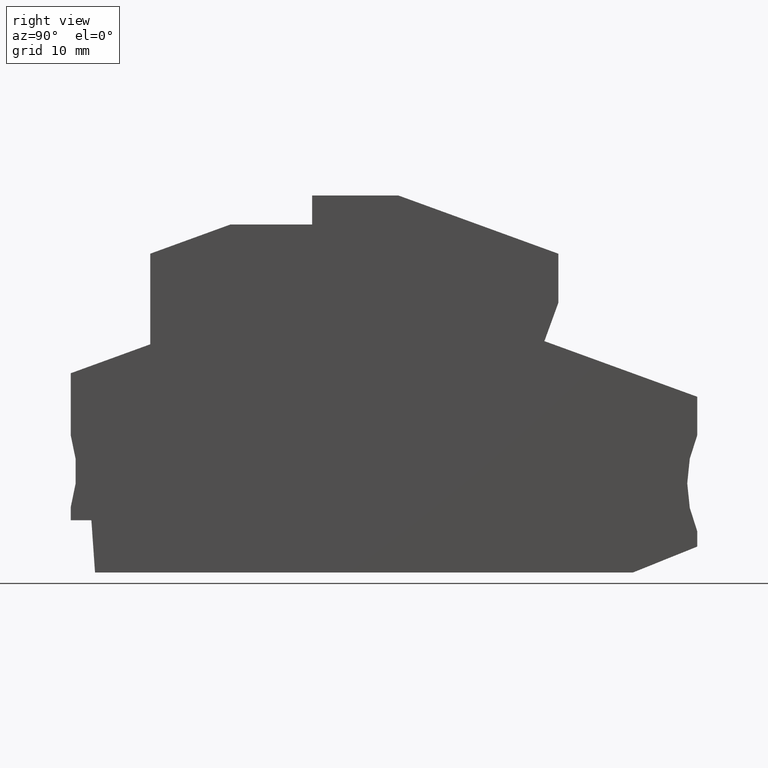
[diagram: clean part render]
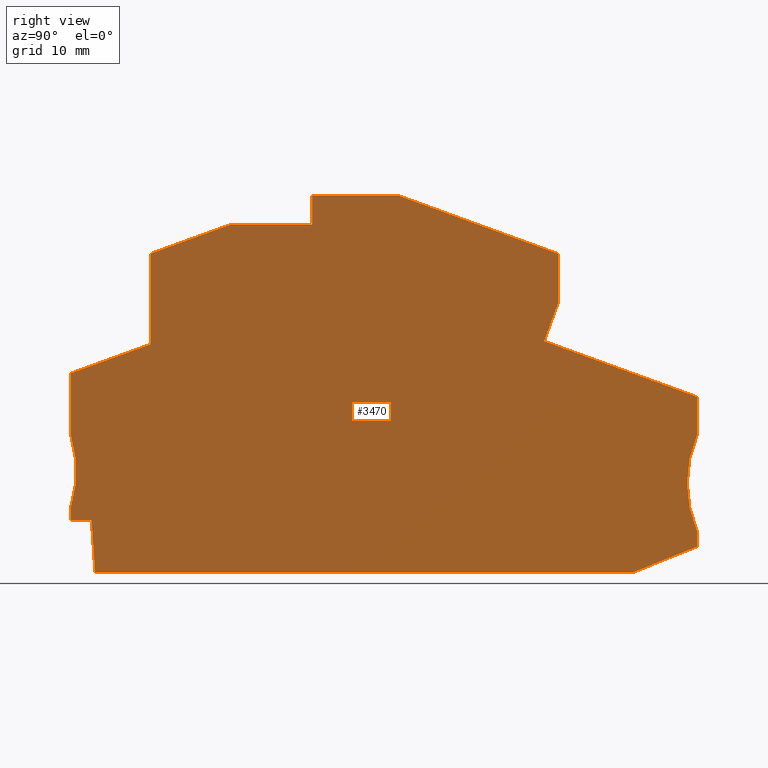
[diagram: same view with one face highlighted and labeled with its STEP entity id]
A machine part, right view. The second image highlights one B-rep face of the part: STEP entity #3470.
In plain terms, the highlighted planar face has unit normal (1, 0, 0).
Its self-contained STEP definition (entity closure, byte-faithful):
#1780=CARTESIAN_POINT('',(-16.9435786159794,-3.29416937217266,
2.19999999999994));
#1790=DIRECTION('',(0.,0.,1.));
#1800=DIRECTION('',(1.,0.,0.));
#1810=AXIS2_PLACEMENT_3D('',#1780,#1790,#1800);
#1820=PLANE('',#1810);
#1830=CARTESIAN_POINT('',(-68.4090880212549,1.18452424727143,
2.19999999999994));
#1840=DIRECTION('',(0.,0.,1.));
#1850=DIRECTION('',(1.,0.,0.));
#1860=AXIS2_PLACEMENT_3D('',#1830,#1840,#1850);
#1870=CIRCLE('',#1860,15.0000000000001);
#1880=CARTESIAN_POINT('',(-54.1000000000011,-3.31547575273034,
2.19999999999994));
#1890=VERTEX_POINT('',#1880);
#1900=CARTESIAN_POINT('',(-54.1,5.68452424726971,2.19999999999994));
#1910=VERTEX_POINT('',#1900);
#1920=EDGE_CURVE('',#1890,#1910,#1870,.T.);
#1930=ORIENTED_EDGE('',*,*,#1920,.F.);
#1940=CARTESIAN_POINT('',(-54.1,22.375712,2.19999999999994));
#1950=DIRECTION('',(0.,-1.,0.));
#1960=VECTOR('',#1950,1.);
#1970=LINE('',#1940,#1960);
#1980=CARTESIAN_POINT('',(-54.1,13.3795999573244,2.19999999999994));
#1990=VERTEX_POINT('',#1980);
#2000=EDGE_CURVE('',#1990,#1910,#1970,.T.);
#2010=ORIENTED_EDGE('',*,*,#2000,.T.);
#2020=CARTESIAN_POINT('',(-12.789958,28.4152256216117,2.19999999999994))
;
#2030=DIRECTION('',(-0.939692620785904,-0.342020143325682,0.));
#2040=VECTOR('',#2030,1.);
#2050=LINE('',#2020,#2040);
#2060=CARTESIAN_POINT('',(-44.200000038562,16.9829052625245,
2.19999999999994));
#2070=VERTEX_POINT('',#2060);
#2080=EDGE_CURVE('',#2070,#1990,#2050,.T.);
#2090=ORIENTED_EDGE('',*,*,#2080,.T.);
#2100=CARTESIAN_POINT('',(-44.200000038562,22.375712,2.19999999999994));
#2110=DIRECTION('',(0.,-1.,0.));
#2120=VECTOR('',#2110,1.);
#2130=LINE('',#2100,#2120);
#2140=CARTESIAN_POINT('',(-44.200000038562,28.2631896507687,
2.19999999999994));
#2150=VERTEX_POINT('',#2140);
#2160=EDGE_CURVE('',#2150,#2070,#2130,.T.);
#2170=ORIENTED_EDGE('',*,*,#2160,.T.);
#2180=CARTESIAN_POINT('',(-12.789958,39.6955100098559,2.19999999999994))
;
#2190=DIRECTION('',(-0.939692620785904,-0.342020143325682,0.));
#2200=VECTOR('',#2190,1.);
#2210=LINE('',#2180,#2200);
#2220=CARTESIAN_POINT('',(-34.207945725206,31.9000000000016,
2.19999999999994));
#2230=VERTEX_POINT('',#2220);
#2240=EDGE_CURVE('',#2230,#2150,#2210,.T.);
#2250=ORIENTED_EDGE('',*,*,#2240,.T.);
#2260=CARTESIAN_POINT('',(-12.789958,31.9000000000017,2.19999999999994))
;
#2270=DIRECTION('',(-1.,0.,0.));
#2280=VECTOR('',#2270,1.);
#2290=LINE('',#2260,#2280);
#2300=CARTESIAN_POINT('',(-24.050000038563,31.9000000000017,
2.19999999999994));
#2310=VERTEX_POINT('',#2300);
#2320=EDGE_CURVE('',#2310,#2230,#2290,.T.);
#2330=ORIENTED_EDGE('',*,*,#2320,.T.);
#2340=CARTESIAN_POINT('',(-24.050000038563,22.375712,2.19999999999994));
#2350=DIRECTION('',(0.,-1.,0.));
#2360=VECTOR('',#2350,1.);
#2370=LINE('',#2340,#2360);
#2380=CARTESIAN_POINT('',(-24.050000038563,35.5000000000033,
2.19999999999994));
#2390=VERTEX_POINT('',#2380);
#2400=EDGE_CURVE('',#2390,#2310,#2370,.T.);
#2410=ORIENTED_EDGE('',*,*,#2400,.T.);
#2420=CARTESIAN_POINT('',(-12.789958,35.5000000000033,2.19999999999994))
;
#2430=DIRECTION('',(-1.,0.,0.));
#2440=VECTOR('',#2430,1.);
#2450=LINE('',#2420,#2440);
#2460=CARTESIAN_POINT('',(-13.2829730619506,35.5000000000033,
2.19999999999994));
#2470=VERTEX_POINT('',#2460);
#2480=EDGE_CURVE('',#2470,#2390,#2450,.T.);
#2490=ORIENTED_EDGE('',*,*,#2480,.T.);
#2500=CARTESIAN_POINT('',(-12.789958,35.3205571924083,2.19999999999994))
;
#2510=DIRECTION('',(-0.939692620785867,0.342020143325783,0.));
#2520=VECTOR('',#2510,1.);
#2530=LINE('',#2500,#2520);
#2540=CARTESIAN_POINT('',(6.59999996143703,28.2631896507696,
2.19999999999994));
#2550=VERTEX_POINT('',#2540);
#2560=EDGE_CURVE('',#2550,#2470,#2530,.T.);
#2570=ORIENTED_EDGE('',*,*,#2560,.T.);
#2580=CARTESIAN_POINT('',(6.59999996143703,22.375712,2.19999999999994));
#2590=DIRECTION('',(0.,1.,0.));
#2600=VECTOR('',#2590,1.);
#2610=LINE('',#2580,#2600);
#2620=CARTESIAN_POINT('',(6.59999996143703,22.1418185639441,
2.19999999999994));
#2630=VERTEX_POINT('',#2620);
#2640=EDGE_CURVE('',#2630,#2550,#2610,.T.);
#2650=ORIENTED_EDGE('',*,*,#2640,.T.);
#2660=CARTESIAN_POINT('',(6.68513021015243,22.375712,2.19999999999994));
#2670=DIRECTION('',(0.342020143328586,0.939692620784847,0.));
#2680=VECTOR('',#2670,1.);
#2690=LINE('',#2660,#2680);
#2700=CARTESIAN_POINT('',(4.86636729023012,17.3787019462203,
2.19999999999994));
#2710=VERTEX_POINT('',#2700);
#2720=EDGE_CURVE('',#2710,#2630,#2690,.T.);
#2730=ORIENTED_EDGE('',*,*,#2720,.T.);
#2740=CARTESIAN_POINT('',(-12.789958,23.8050787983884,2.19999999999994))
;
#2750=DIRECTION('',(-0.939692620785863,0.342020143325795,0.));
#2760=VECTOR('',#2750,1.);
#2770=LINE('',#2740,#2760);
#2780=CARTESIAN_POINT('',(23.8999999614379,10.4510262039411,
2.19999999999994));
#2790=VERTEX_POINT('',#2780);
#2800=EDGE_CURVE('',#2790,#2710,#2770,.T.);
#2810=ORIENTED_EDGE('',*,*,#2800,.T.);
#2820=CARTESIAN_POINT('',(23.8999999614379,22.375712,2.19999999999994));
#2830=DIRECTION('',(0.,1.,0.));
#2840=VECTOR('',#2830,1.);
#2850=LINE('',#2820,#2840);
#2860=CARTESIAN_POINT('',(23.8999999614379,5.68452422222856,
2.19999999999994));
#2870=VERTEX_POINT('',#2860);
#2880=EDGE_CURVE('',#2870,#2790,#2850,.T.);
#2890=ORIENTED_EDGE('',*,*,#2880,.T.);
#2900=CARTESIAN_POINT('',(37.6477270610029,-0.315475744095373,
2.19999999999994));
#2910=DIRECTION('',(0.,0.,1.));
#2920=DIRECTION('',(1.,0.,0.));
#2930=AXIS2_PLACEMENT_3D('',#2900,#2910,#2920);
#2940=CIRCLE('',#2930,15.);
#2950=CARTESIAN_POINT('',(23.8999999761354,-6.31547574409539,
2.19999999999994));
#2960=VERTEX_POINT('',#2950);
#2970=EDGE_CURVE('',#2870,#2960,#2940,.T.);
#2980=ORIENTED_EDGE('',*,*,#2970,.F.);
#2990=CARTESIAN_POINT('',(23.8999999761354,22.375712,2.19999999999994));
#3000=DIRECTION('',(6.12323399573676E-17,1.,0.));
#3010=VECTOR('',#3000,1.);
#3020=LINE('',#2990,#3010);
#3030=CARTESIAN_POINT('',(23.8999999761354,-8.19461762791234,
2.19999999999994));
#3040=VERTEX_POINT('',#3030);
#3050=EDGE_CURVE('',#3040,#2960,#3020,.T.);
#3060=ORIENTED_EDGE('',*,*,#3050,.T.);
#3070=CARTESIAN_POINT('',(-12.789958,-22.9755486386901,2.19999999999994)
);
#3080=DIRECTION('',(0.927558981852562,0.373676779027864,0.));
#3090=VECTOR('',#3080,1.);
#3100=LINE('',#3070,#3090);
#3110=CARTESIAN_POINT('',(15.9050266445918,-11.4154757527273,
2.19999999999994));
#3120=VERTEX_POINT('',#3110);
#3130=EDGE_CURVE('',#3120,#3040,#3100,.T.);
#3140=ORIENTED_EDGE('',*,*,#3130,.T.);
#3150=CARTESIAN_POINT('',(-12.789958,-11.4154757527273,2.19999999999994)
);
#3160=DIRECTION('',(1.,0.,0.));
#3170=VECTOR('',#3160,1.);
#3180=LINE('',#3150,#3170);
#3190=CARTESIAN_POINT('',(-51.0715840913172,-11.4154757527273,
2.19999999999994));
#3200=VERTEX_POINT('',#3190);
#3210=EDGE_CURVE('',#3200,#3120,#3180,.T.);
#3220=ORIENTED_EDGE('',*,*,#3210,.T.);
#3230=CARTESIAN_POINT('',(-53.4344941226498,22.375712,2.19999999999994))
;
#3240=DIRECTION('',(0.0697564737441188,-0.997564050259825,0.));
#3250=VECTOR('',#3240,1.);
#3260=LINE('',#3230,#3250);
#3270=CARTESIAN_POINT('',(-51.5261083689501,-4.91547575272546,
2.19999999999994));
#3280=VERTEX_POINT('',#3270);
#3290=EDGE_CURVE('',#3280,#3200,#3260,.T.);
#3300=ORIENTED_EDGE('',*,*,#3290,.T.);
#3310=CARTESIAN_POINT('',(-12.789958,-4.91547575272546,2.19999999999994)
);
#3320=DIRECTION('',(1.,0.,0.));
#3330=VECTOR('',#3320,1.);
#3340=LINE('',#3310,#3330);
#3350=CARTESIAN_POINT('',(-54.0999999999997,-4.91547575272546,
2.19999999999994));
#3360=VERTEX_POINT('',#3350);
#3370=EDGE_CURVE('',#3360,#3280,#3340,.T.);
#3380=ORIENTED_EDGE('',*,*,#3370,.T.);
#3390=CARTESIAN_POINT('',(-54.100000000024,22.375712,2.19999999999994));
#3400=DIRECTION('',(8.91857937436628E-13,-1.,0.));
#3410=VECTOR('',#3400,1.);
#3420=LINE('',#3390,#3410);
#3430=EDGE_CURVE('',#1890,#3360,#3420,.T.);
#3440=ORIENTED_EDGE('',*,*,#3430,.T.);
#3450=EDGE_LOOP('',(#3440,#3380,#3300,#3220,#3140,#3060,#2980,#2890,
#2810,#2730,#2650,#2570,#2490,#2410,#2330,#2250,#2170,#2090,#2010,#1930)
);
#3460=FACE_OUTER_BOUND('',#3450,.T.);
#3470=ADVANCED_FACE('',(#3460),#1820,.T.);